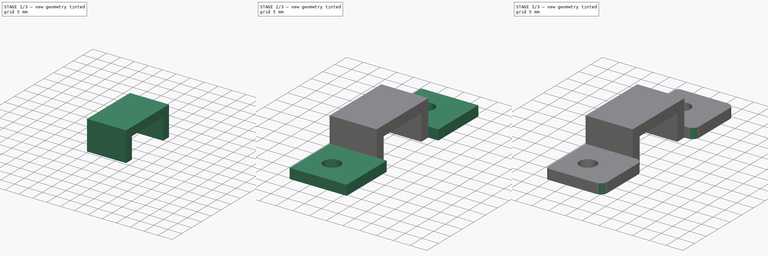
[diagram: build sequence overview — one tinted view per stage of 3, left to right]
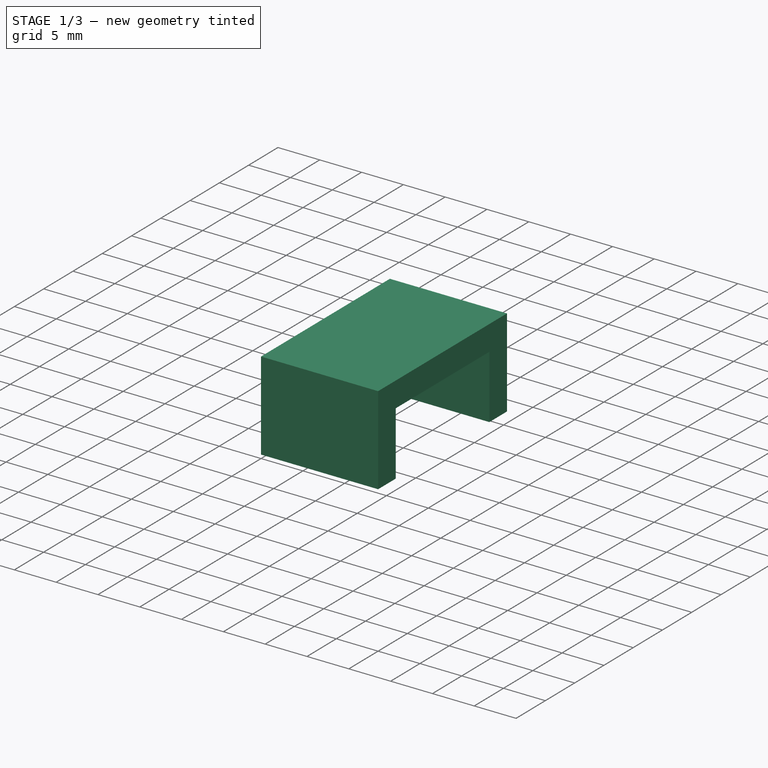
[diagram: stage 1 of 3 — iso view after this stage's code; geometry added in this stage tinted green]
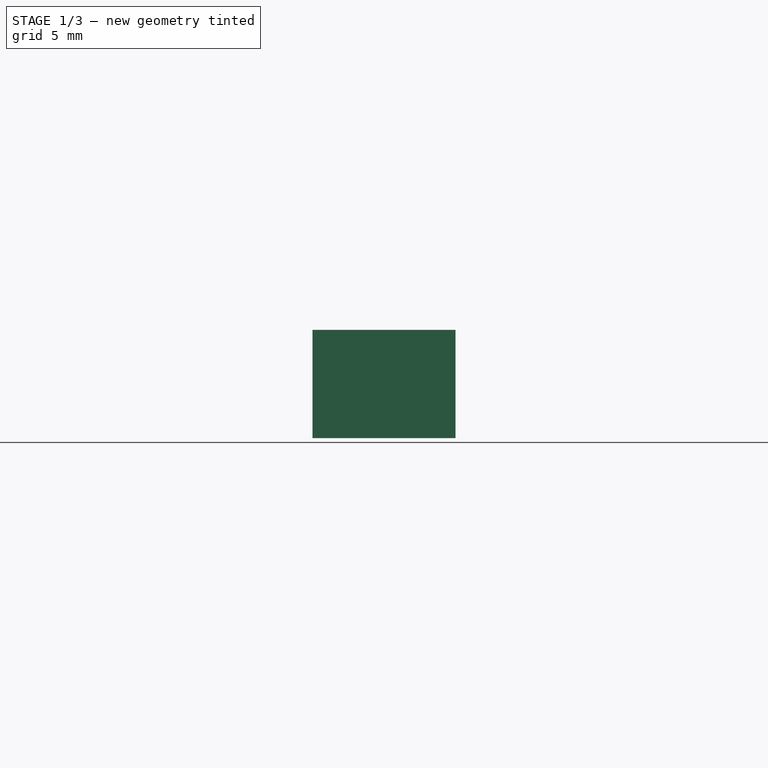
[diagram: stage 1 of 3 — front view after this stage's code; geometry added in this stage tinted green]
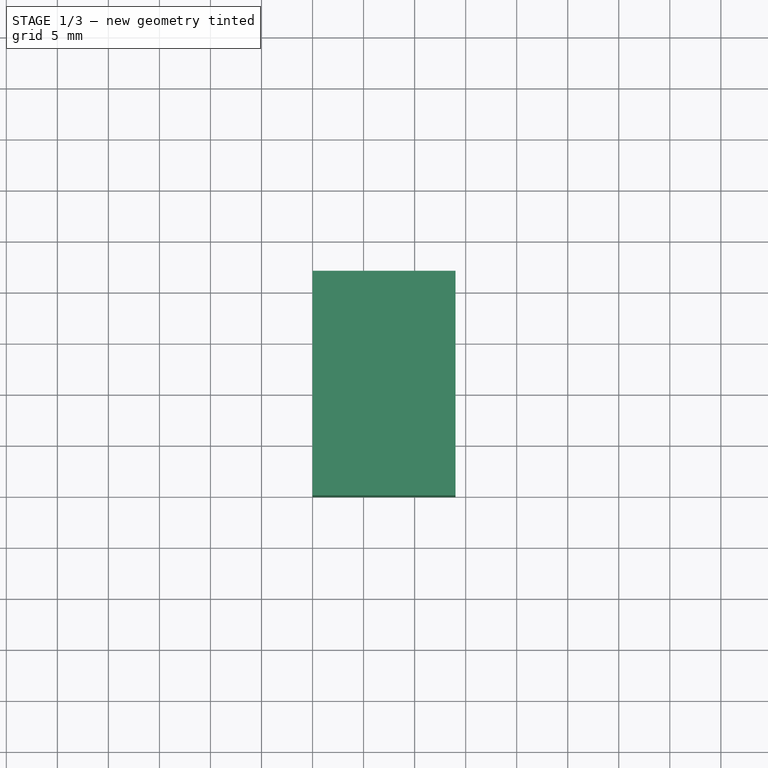
[diagram: stage 1 of 3 — top view after this stage's code; geometry added in this stage tinted green]
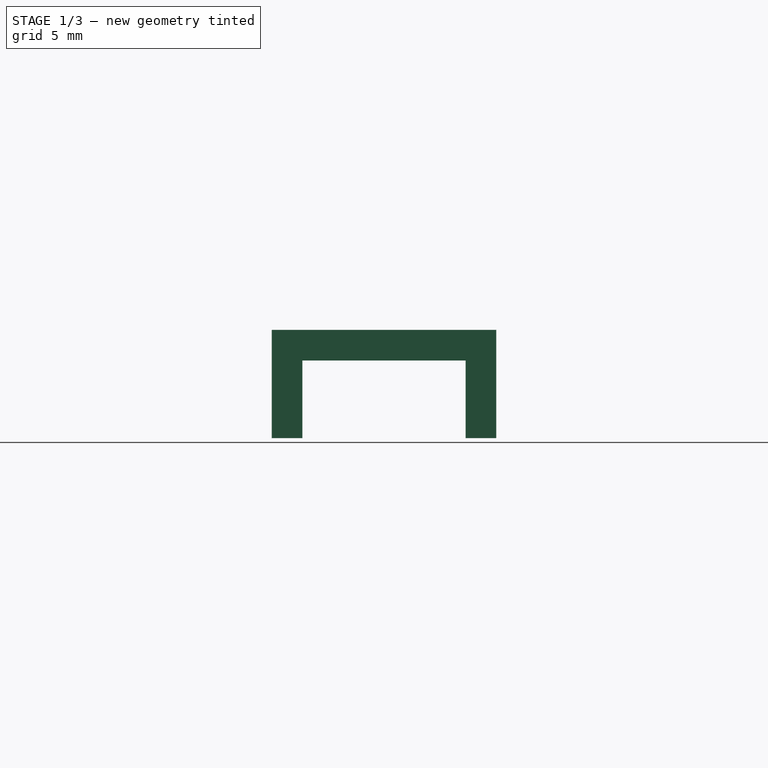
[diagram: stage 1 of 3 — right view after this stage's code; geometry added in this stage tinted green]
FCSTD DOCUMENT  (FreeCAD 0.19R24276 (Git))
Label: Connector_holder_part_2
License: All rights reserved
LicenseURL: http://en.wikipedia.org/wiki/All_rights_reserved
objects: Sketcher::SketchObject×3, PartDesign::Pad×3, PartDesign::Fillet×2, PartDesign::Body×1
note: 14 computed .brp shape members not serialized (recipe doc carries the construction recipe); baked Part::Feature solids carry a one-line shape summary decoded from their .brp

FEATURE [Sketcher::SketchObject] Sketch
  FullyConstrained = true
  MapMode = 5
  Support = -> [XY_Plane]
  sketch-geometry (18):
    g0: LineSegment StartX=0 StartY=0 StartZ=0 EndX=14 EndY=0 EndZ=0
    g1: LineSegment StartX=14 StartY=0 StartZ=0 EndX=14 EndY=22 EndZ=0
    g2: LineSegment StartX=14 StartY=22 StartZ=0 EndX=0 EndY=22 EndZ=0
    g3: LineSegment StartX=0 StartY=22 StartZ=0 EndX=0 EndY=0 EndZ=0
    g4: LineSegment StartX=0 StartY=-17 StartZ=0 EndX=14 EndY=-17 EndZ=0
    g5: LineSegment StartX=14 StartY=-17 StartZ=0 EndX=14 EndY=39 EndZ=0
    g6: LineSegment StartX=14 StartY=39 StartZ=0 EndX=0 EndY=39 EndZ=0
    g7: LineSegment StartX=0 StartY=39 StartZ=0 EndX=0 EndY=-17 EndZ=0
    g8: Circle CenterX=7 CenterY=31 CenterZ=0 NormalX=0 NormalY=0 NormalZ=1 AngleXU=0 Radius=2.5
    g9: Circle CenterX=7 CenterY=-9 CenterZ=0 NormalX=0 NormalY=0 NormalZ=1 AngleXU=0 Radius=2.5
    g10: LineSegment StartX=7 StartY=11 StartZ=0 EndX=14 EndY=11 EndZ=0
    g11: LineSegment StartX=7 StartY=-9 StartZ=0 EndX=7 EndY=0 EndZ=0
    g12: LineSegment StartX=14 StartY=39 StartZ=0 EndX=17 EndY=39 EndZ=0
    g13: LineSegment StartX=17 StartY=39 StartZ=0 EndX=17 EndY=-17 EndZ=0
    g14: LineSegment StartX=17 StartY=-17 StartZ=0 EndX=14 EndY=-17 EndZ=0
    g15: LineSegment StartX=14 StartY=-17 StartZ=0 EndX=14 EndY=39 EndZ=0
    g16: LineSegment StartX=0 StartY=39 StartZ=0 EndX=17 EndY=39 EndZ=0
    g17: LineSegment StartX=0 StartY=-17 StartZ=0 EndX=17 EndY=-17 EndZ=0
  constraints (48):
    c: Coincident(g0,g1)
    c: Coincident(g1,g2)
    c: Coincident(g2,g3)
    c: Coincident(g3,g0)
    c: Horizontal(g0)
    c: Horizontal(g2)
    c: Vertical(g1)
    c: Vertical(g3)
    c: Coincident(g0,g-1)
    c: Coincident(g4,g5)
    c: Coincident(g5,g6)
    c: Coincident(g6,g7)
    c: Coincident(g7,g4)
    c: Horizontal(g4)
    c: Horizontal(g6)
    c: Vertical(g5)
    c: Vertical(g7)
    c: PointOnObject(g4,g-2)
    c: DistanceY(g3,g3) = 22
    c: Vertical(g9,g8)
    c: Horizontal(g10)
    c: Symmetric(g1,g0,g10)
    c: Symmetric(g8,g9,g10)
    c: Coincident(g11,g9)
    c: Vertical(g11)
    c: Symmetric(g-1,g0,g11)
    c: DistanceY(g9,g8) = 40
    c: Vertical(g4,g0)
    c: DistanceY(g8,g5) = 8
    c: DistanceY(g4,g5) = 56
    c: DistanceX(g4,g4) = 14
    c: Diameter(g9) = 5
    c: Equal(g9,g8)
    c: Coincident(g12,g13)
    c: Coincident(g13,g14)
    c: Coincident(g14,g15)
    c: Coincident(g15,g12)
    c: Horizontal(g12)
    c: Horizontal(g14)
    c: Vertical(g13)
    c: Vertical(g15)
    c: Coincident(g12,g5)
    c: Horizontal(g14,g4)
    c: DistanceX(g14,g14) = 3
    c: Coincident(g16,g7)
    c: Coincident(g16,g13)
    c: Coincident(g17,g7)
    c: Coincident(g13,g17)
FEATURE [PartDesign::Pad] Pad
  Direction = (1,1,1)
  Length = 3
  Length2 = 100
  Profile = -> Sketch
  Type = 0
FEATURE [Sketcher::SketchObject] Sketch001
  FullyConstrained = true
  MapMode = 5
  Support = -> [XY_Plane]
  sketch-geometry (26):
    g0: LineSegment StartX=0 StartY=0 StartZ=0 EndX=14 EndY=0 EndZ=0
    g1: LineSegment StartX=14 StartY=0 StartZ=0 EndX=14 EndY=22 EndZ=0
    g2: LineSegment StartX=14 StartY=22 StartZ=0 EndX=0 EndY=22 EndZ=0
    g3: LineSegment StartX=0 StartY=22 StartZ=0 EndX=0 EndY=0 EndZ=0
    g4: LineSegment StartX=0 StartY=-17 StartZ=0 EndX=14 EndY=-17 EndZ=0
    g5: LineSegment StartX=14 StartY=-17 StartZ=0 EndX=14 EndY=39 EndZ=0
    g6: LineSegment StartX=14 StartY=39 StartZ=0 EndX=0 EndY=39 EndZ=0
    g7: LineSegment StartX=0 StartY=39 StartZ=0 EndX=0 EndY=-17 EndZ=0
    g8: Circle CenterX=7 CenterY=31 CenterZ=0 NormalX=0 NormalY=0 NormalZ=1 AngleXU=0 Radius=2.5
    g9: Circle CenterX=7 CenterY=-9 CenterZ=0 NormalX=0 NormalY=0 NormalZ=1 AngleXU=0 Radius=2.5
    g10: LineSegment StartX=7 StartY=11 StartZ=0 EndX=14 EndY=11 EndZ=0
    g11: LineSegment StartX=7 StartY=-9 StartZ=0 EndX=7 EndY=0 EndZ=0
    g12: LineSegment StartX=14 StartY=39 StartZ=0 EndX=17 EndY=39 EndZ=0
    g13: LineSegment StartX=17 StartY=39 StartZ=0 EndX=17 EndY=-17 EndZ=0
    g14: LineSegment StartX=17 StartY=-17 StartZ=0 EndX=14 EndY=-17 EndZ=0
    g15: LineSegment StartX=14 StartY=-17 StartZ=0 EndX=14 EndY=39 EndZ=0
    g16: LineSegment StartX=0 StartY=39 StartZ=0 EndX=17 EndY=39 EndZ=0
    g17: LineSegment StartX=0 StartY=-17 StartZ=0 EndX=17 EndY=-17 EndZ=0
    g18: LineSegment StartX=0 StartY=22 StartZ=0 EndX=14 EndY=22 EndZ=0
    g19: LineSegment StartX=14 StartY=22 StartZ=0 EndX=14 EndY=19 EndZ=0
    g20: LineSegment StartX=14 StartY=19 StartZ=0 EndX=0 EndY=19 EndZ=0
    g21: LineSegment StartX=0 StartY=19 StartZ=0 EndX=0 EndY=22 EndZ=0
    g22: LineSegment StartX=0 StartY=0 StartZ=0 EndX=14 EndY=0 EndZ=0
    g23: LineSegment StartX=14 StartY=0 StartZ=0 EndX=14 EndY=3 EndZ=0
    g24: LineSegment StartX=14 StartY=3 StartZ=0 EndX=0 EndY=3 EndZ=0
    g25: LineSegment StartX=0 StartY=3 StartZ=0 EndX=0 EndY=0 EndZ=0
  constraints (70):
    c: Coincident(g0,g1)
    c: Coincident(g1,g2)
    c: Coincident(g2,g3)
    c: Coincident(g3,g0)
    c: Horizontal(g0)
    c: Horizontal(g2)
    c: Vertical(g1)
    c: Vertical(g3)
    c: Coincident(g0,g-1)
    c: Coincident(g4,g5)
    c: Coincident(g5,g6)
    c: Coincident(g6,g7)
    c: Coincident(g7,g4)
    c: Horizontal(g4)
    c: Horizontal(g6)
    c: Vertical(g5)
    c: Vertical(g7)
    c: PointOnObject(g4,g-2)
    c: DistanceY(g3,g3) = 22
    c: Vertical(g9,g8)
    c: Horizontal(g10)
    c: Symmetric(g1,g0,g10)
    c: Symmetric(g8,g9,g10)
    c: Coincident(g11,g9)
    c: Vertical(g11)
    c: Symmetric(g-1,g0,g11)
    c: DistanceY(g9,g8) = 40
    c: Vertical(g4,g0)
    c: DistanceY(g8,g5) = 8
    c: DistanceY(g4,g5) = 56
    c: DistanceX(g4,g4) = 14
    c: Diameter(g9) = 5
    c: Equal(g9,g8)
    c: Coincident(g12,g13)
    c: Coincident(g13,g14)
    c: Coincident(g14,g15)
    c: Coincident(g15,g12)
    c: Horizontal(g12)
    c: Horizontal(g14)
    c: Vertical(g13)
    c: Vertical(g15)
    c: Coincident(g12,g5)
    c: Horizontal(g14,g4)
    c: DistanceX(g14,g14) = 3
    c: Coincident(g16,g7)
    c: Coincident(g16,g13)
    c: Coincident(g17,g7)
    c: Coincident(g13,g17)
    c: Coincident(g18,g19)
    c: Coincident(g19,g20)
    c: Coincident(g20,g21)
    c: Coincident(g21,g18)
    c: Horizontal(g18)
    c: Horizontal(g20)
    c: Vertical(g19)
    c: Vertical(g21)
    c: Coincident(g18,g2)
    c: Vertical(g18,g1)
    c: Coincident(g22,g23)
    c: Coincident(g23,g24)
    c: Coincident(g24,g25)
    c: Coincident(g25,g22)
    c: Horizontal(g22)
    c: Horizontal(g24)
    c: Vertical(g23)
    c: Vertical(g25)
    c: Coincident(g22,g-1)
    c: Vertical(g23,g0)
    c: DistanceY(g23,g23) = 3
    c: DistanceY(g19,g19) = 3
FEATURE [PartDesign::Pad] Pad001
  BaseFeature = -> Pad
  Direction = (1,1,1)
  Length = 7.6
  Length2 = 100
  Profile = -> Sketch001
  Reversed = true
  Type = 0
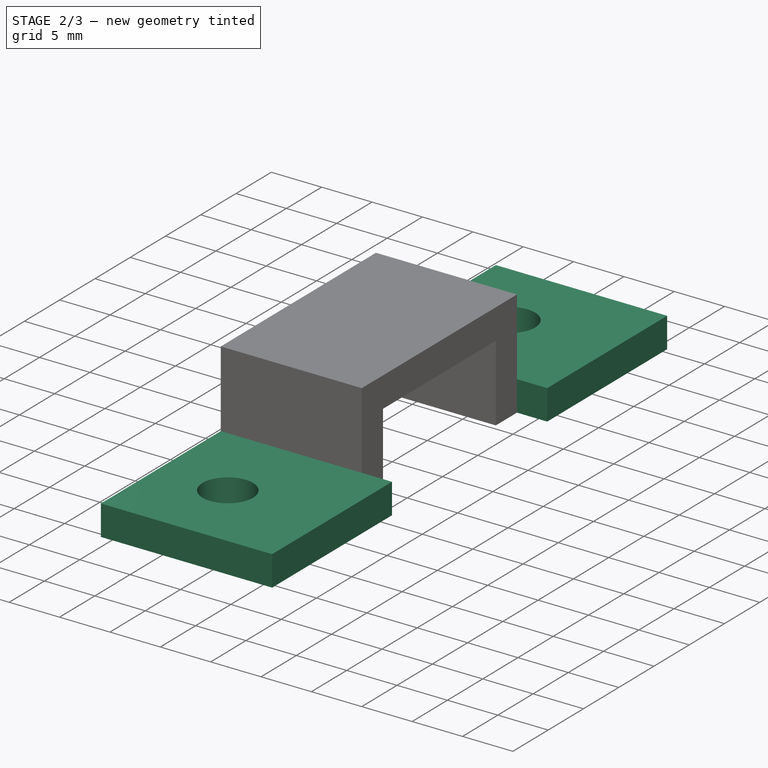
[diagram: stage 2 of 3 — iso view after this stage's code; geometry added in this stage tinted green]
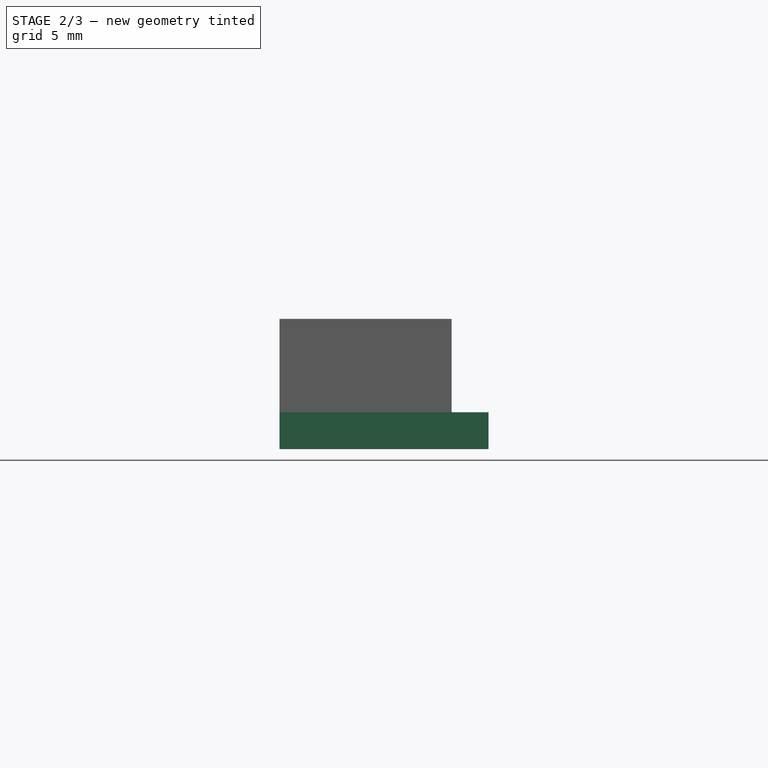
[diagram: stage 2 of 3 — front view after this stage's code; geometry added in this stage tinted green]
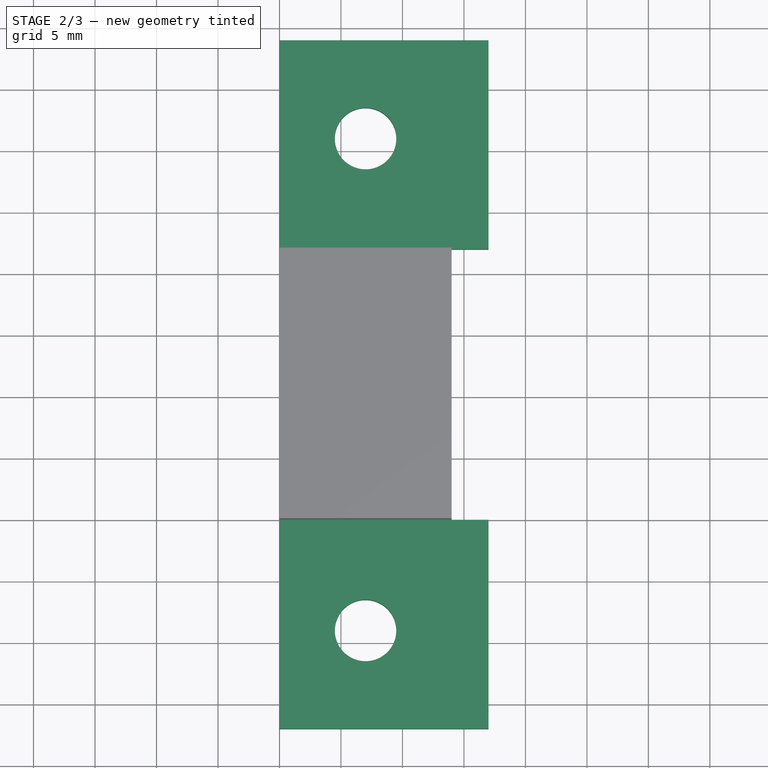
[diagram: stage 2 of 3 — top view after this stage's code; geometry added in this stage tinted green]
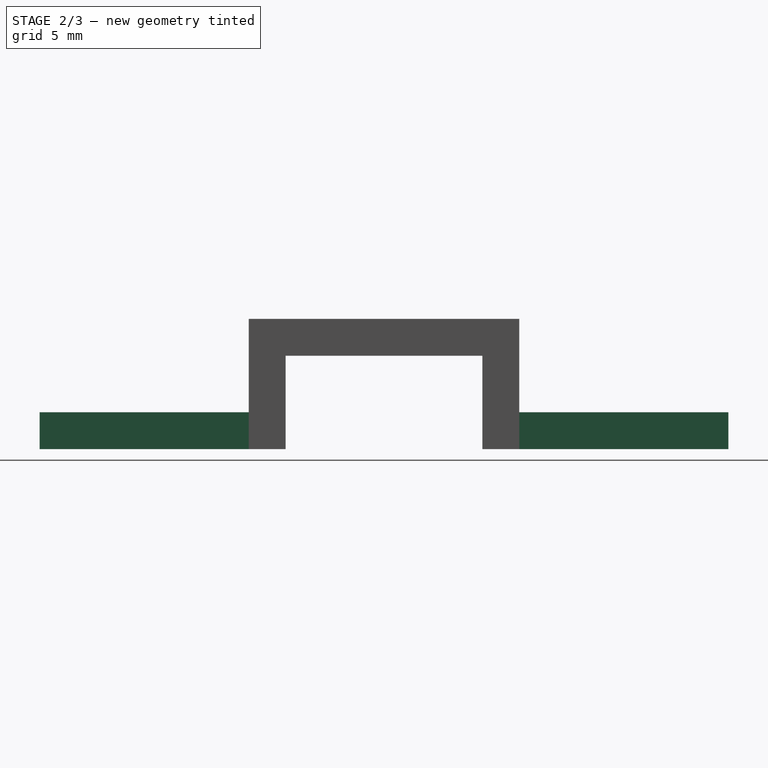
[diagram: stage 2 of 3 — right view after this stage's code; geometry added in this stage tinted green]
FEATURE [Sketcher::SketchObject] Sketch002
  AttachmentOffset = pos=(0,0,-4.6) rot=(0,0,1;0rad)
  FullyConstrained = true
  MapMode = 5
  Placement = pos=(0,0,-4.6) rot=(0,0,1;0rad)
  Support = -> [XY_Plane]
  sketch-geometry (34):
    g0: LineSegment StartX=0 StartY=0 StartZ=0 EndX=14 EndY=0 EndZ=0
    g1: LineSegment StartX=14 StartY=0 StartZ=0 EndX=14 EndY=22 EndZ=0
    g2: LineSegment StartX=14 StartY=22 StartZ=0 EndX=0 EndY=22 EndZ=0
    g3: LineSegment StartX=0 StartY=22 StartZ=0 EndX=0 EndY=0 EndZ=0
    g4: LineSegment StartX=0 StartY=-17 StartZ=0 EndX=14 EndY=-17 EndZ=0
    g5: LineSegment StartX=14 StartY=-17 StartZ=0 EndX=14 EndY=39 EndZ=0
    g6: LineSegment StartX=14 StartY=39 StartZ=0 EndX=0 EndY=39 EndZ=0
    g7: LineSegment StartX=0 StartY=39 StartZ=0 EndX=0 EndY=-17 EndZ=0
    g8: Circle CenterX=7 CenterY=31 CenterZ=0 NormalX=0 NormalY=0 NormalZ=1 AngleXU=0 Radius=2.5
    g9: Circle CenterX=7 CenterY=-9 CenterZ=0 NormalX=0 NormalY=0 NormalZ=1 AngleXU=0 Radius=2.5
    g10: LineSegment StartX=7 StartY=11 StartZ=0 EndX=14 EndY=11 EndZ=0
    g11: LineSegment StartX=7 StartY=-9 StartZ=0 EndX=7 EndY=0 EndZ=0
    g12: LineSegment StartX=14 StartY=39 StartZ=0 EndX=17 EndY=39 EndZ=0
    g13: LineSegment StartX=17 StartY=39 StartZ=0 EndX=17 EndY=-17 EndZ=0
    g14: LineSegment StartX=17 StartY=-17 StartZ=0 EndX=14 EndY=-17 EndZ=0
    g15: LineSegment StartX=14 StartY=-17 StartZ=0 EndX=14 EndY=39 EndZ=0
    g16: LineSegment StartX=0 StartY=39 StartZ=0 EndX=17 EndY=39 EndZ=0
    g17: LineSegment StartX=0 StartY=-17 StartZ=0 EndX=17 EndY=-17 EndZ=0
    g18: LineSegment StartX=0 StartY=22 StartZ=0 EndX=14 EndY=22 EndZ=0
    g19: LineSegment StartX=14 StartY=22 StartZ=0 EndX=14 EndY=19 EndZ=0
    g20: LineSegment StartX=14 StartY=19 StartZ=0 EndX=0 EndY=19 EndZ=0
    g21: LineSegment StartX=0 StartY=19 StartZ=0 EndX=0 EndY=22 EndZ=0
    g22: LineSegment StartX=0 StartY=0 StartZ=0 EndX=14 EndY=0 EndZ=0
    g23: LineSegment StartX=14 StartY=0 StartZ=0 EndX=14 EndY=3 EndZ=0
    g24: LineSegment StartX=14 StartY=3 StartZ=0 EndX=0 EndY=3 EndZ=0
    g25: LineSegment StartX=0 StartY=3 StartZ=0 EndX=0 EndY=0 EndZ=0
    g26: LineSegment StartX=0 StartY=22 StartZ=0 EndX=17 EndY=22 EndZ=0
    g27: LineSegment StartX=17 StartY=22 StartZ=0 EndX=17 EndY=39 EndZ=0
    g28: LineSegment StartX=17 StartY=39 StartZ=0 EndX=0 EndY=39 EndZ=0
    g29: LineSegment StartX=0 StartY=39 StartZ=0 EndX=0 EndY=22 EndZ=0
    g30: LineSegment StartX=0 StartY=0 StartZ=0 EndX=17 EndY=0 EndZ=0
    g31: LineSegment StartX=17 StartY=0 StartZ=0 EndX=17 EndY=-17 EndZ=0
    g32: LineSegment StartX=17 StartY=-17 StartZ=0 EndX=0 EndY=-17 EndZ=0
    g33: LineSegment StartX=0 StartY=-17 StartZ=0 EndX=0 EndY=0 EndZ=0
  constraints (90):
    c: Coincident(g0,g1)
    c: Coincident(g1,g2)
    c: Coincident(g2,g3)
    c: Coincident(g3,g0)
    c: Horizontal(g0)
    c: Horizontal(g2)
    c: Vertical(g1)
    c: Vertical(g3)
    c: Coincident(g0,g-1)
    c: Coincident(g4,g5)
    c: Coincident(g5,g6)
    c: Coincident(g6,g7)
    c: Coincident(g7,g4)
    c: Horizontal(g4)
    c: Horizontal(g6)
    c: Vertical(g5)
    c: Vertical(g7)
    c: PointOnObject(g4,g-2)
    c: DistanceY(g3,g3) = 22
    c: Vertical(g9,g8)
    c: Horizontal(g10)
    c: Symmetric(g1,g0,g10)
    c: Symmetric(g8,g9,g10)
    c: Coincident(g11,g9)
    c: Vertical(g11)
    c: Symmetric(g-1,g0,g11)
    c: DistanceY(g9,g8) = 40
    c: Vertical(g4,g0)
    c: DistanceY(g8,g5) = 8
    c: DistanceY(g4,g5) = 56
    c: DistanceX(g4,g4) = 14
    c: Diameter(g9) = 5
    c: Equal(g9,g8)
    c: Coincident(g12,g13)
    c: Coincident(g13,g14)
    c: Coincident(g14,g15)
    c: Coincident(g15,g12)
    c: Horizontal(g12)
    c: Horizontal(g14)
    c: Vertical(g13)
    c: Vertical(g15)
    c: Coincident(g12,g5)
    c: Horizontal(g14,g4)
    c: DistanceX(g14,g14) = 3
    c: Coincident(g16,g7)
    c: Coincident(g16,g13)
    c: Coincident(g17,g7)
    c: Coincident(g13,g17)
    c: Coincident(g18,g19)
    c: Coincident(g19,g20)
    c: Coincident(g20,g21)
    c: Coincident(g21,g18)
    c: Horizontal(g18)
    c: Horizontal(g20)
    c: Vertical(g19)
    c: Vertical(g21)
    c: Coincident(g18,g2)
    c: Vertical(g18,g1)
    c: Coincident(g22,g23)
    c: Coincident(g23,g24)
    c: Coincident(g24,g25)
    c: Coincident(g25,g22)
    c: Horizontal(g22)
    c: Horizontal(g24)
    c: Vertical(g23)
    c: Vertical(g25)
    c: Coincident(g22,g-1)
    c: Vertical(g23,g0)
    c: DistanceY(g23,g23) = 3
    c: DistanceY(g19,g19) = 3
    c: Coincident(g26,g27)
    c: Coincident(g27,g28)
    c: Coincident(g28,g29)
    c: Coincident(g29,g26)
    c: Horizontal(g26)
    c: Horizontal(g28)
    c: Vertical(g27)
    c: Vertical(g29)
    c: Coincident(g26,g2)
    c: Coincident(g27,g12)
    c: Coincident(g30,g31)
    c: Coincident(g31,g32)
    c: Coincident(g32,g33)
    c: Coincident(g33,g30)
    c: Horizontal(g30)
    c: Horizontal(g32)
    c: Vertical(g31)
    c: Vertical(g33)
    c: Coincident(g30,g-1)
    c: Coincident(g31,g13)
FEATURE [PartDesign::Pad] Pad002
  BaseFeature = -> Pad001
  Direction = (1,1,1)
  Length = 3
  Length2 = 100
  Profile = -> Sketch002
  Reversed = true
  Type = 0
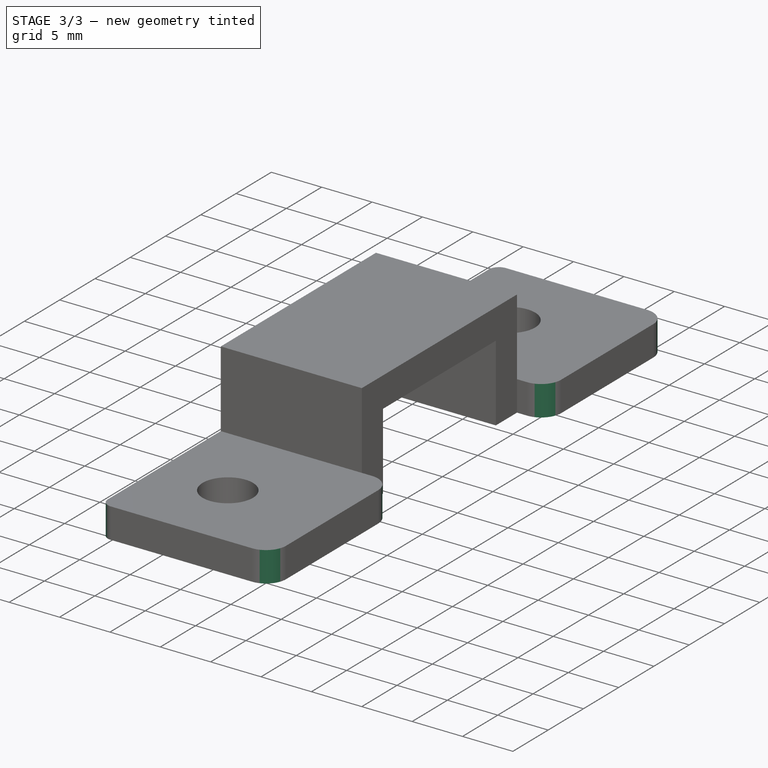
[diagram: stage 3 of 3 — iso view after this stage's code; geometry added in this stage tinted green]
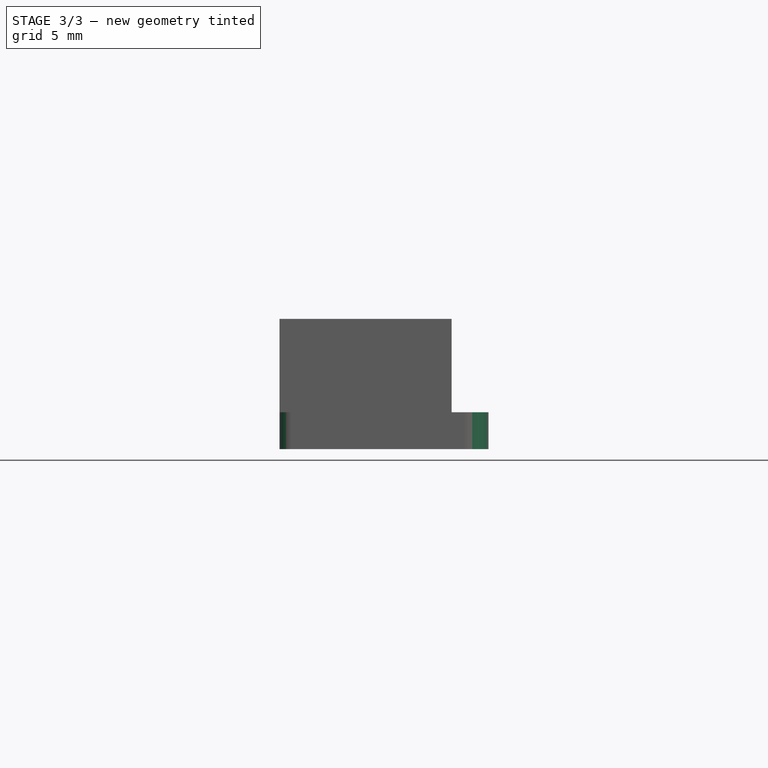
[diagram: stage 3 of 3 — front view after this stage's code; geometry added in this stage tinted green]
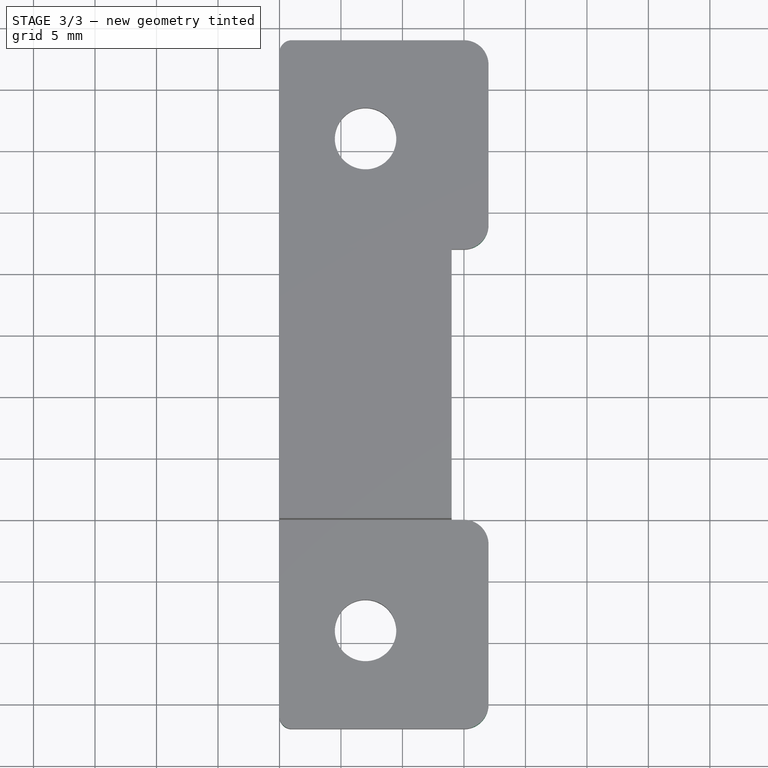
[diagram: stage 3 of 3 — top view after this stage's code; geometry added in this stage tinted green]
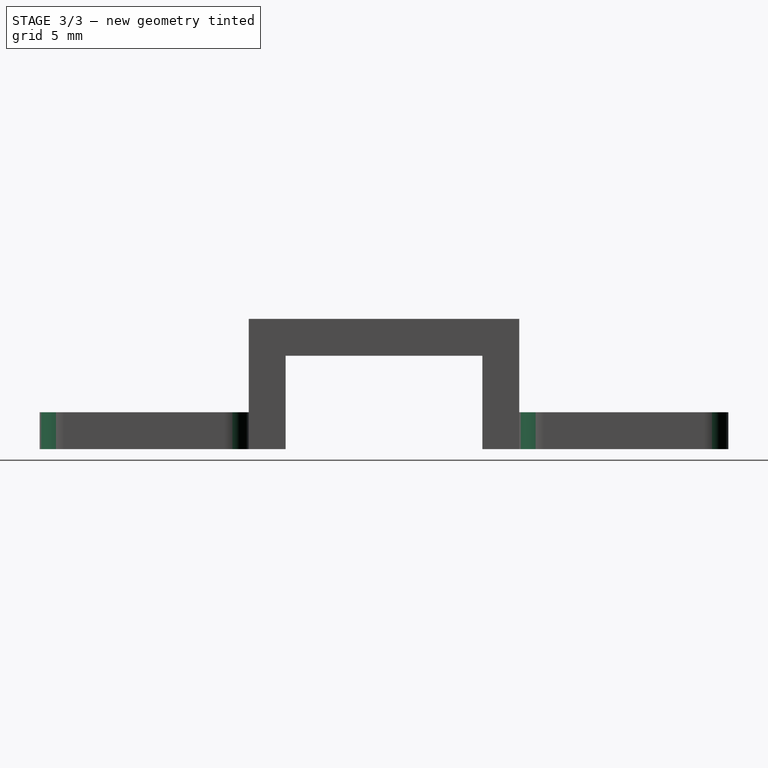
[diagram: stage 3 of 3 — right view after this stage's code; geometry added in this stage tinted green]
FEATURE [PartDesign::Fillet] Fillet
  Base = -> Pad002 [Edge56,Edge51,Edge54,Edge64]
  BaseFeature = -> Pad002
  Radius = 2
  SupportTransform = false
FEATURE [PartDesign::Fillet] Fillet001
  Base = -> Fillet [Edge19,Edge64]
  BaseFeature = -> Fillet
  Radius = 1
  SupportTransform = false
FEATURE [PartDesign::Body] Body
  Group = -> [Sketch,Pad,Sketch001,Pad001,Sketch002,Pad002,Fillet,Fillet001]
  Origin = -> Origin
  Tip = -> Fillet001
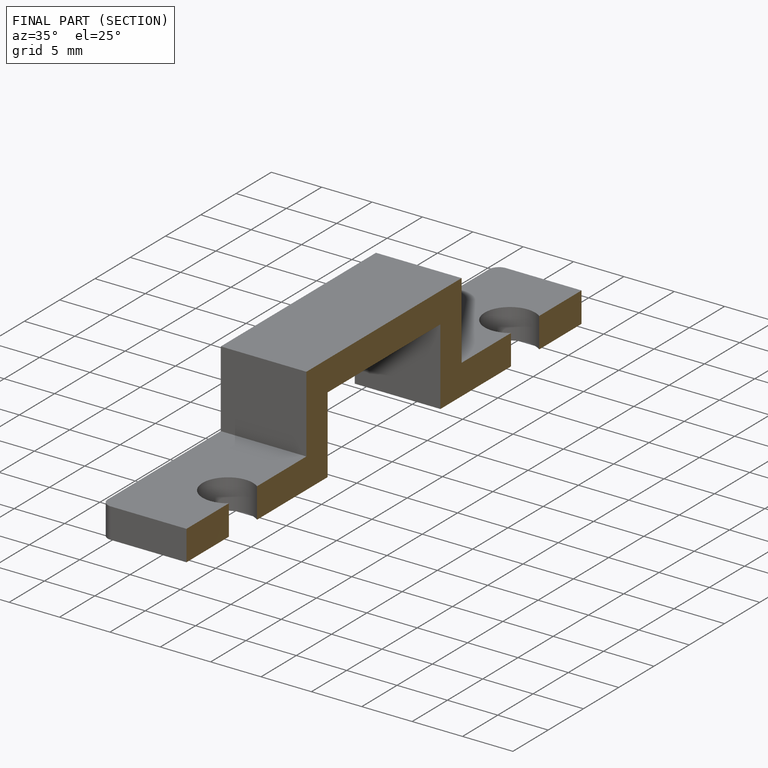
[diagram: finished part — half-section view (interior)]
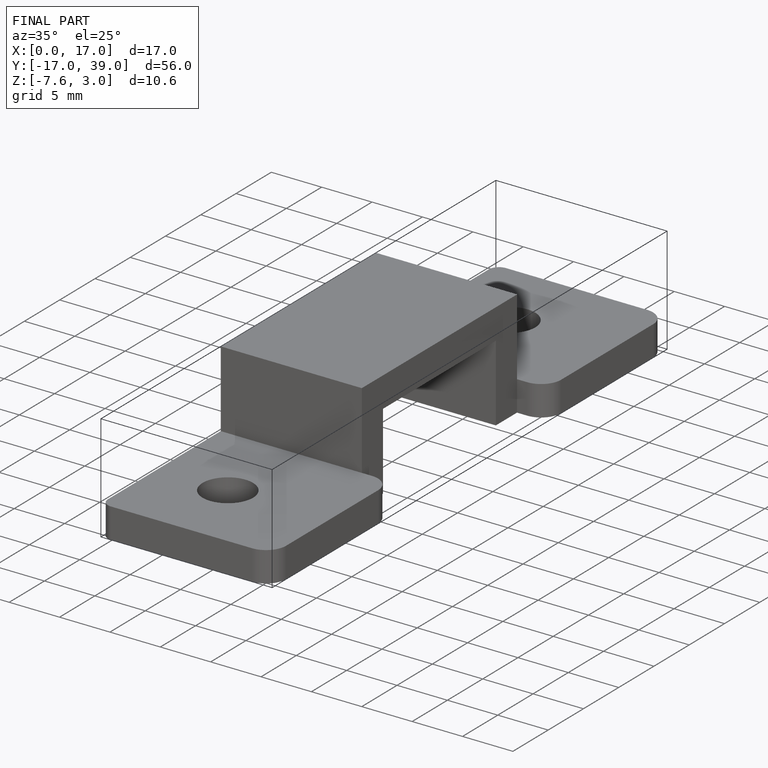
[diagram: finished part — iso view with bounding-box wireframe]
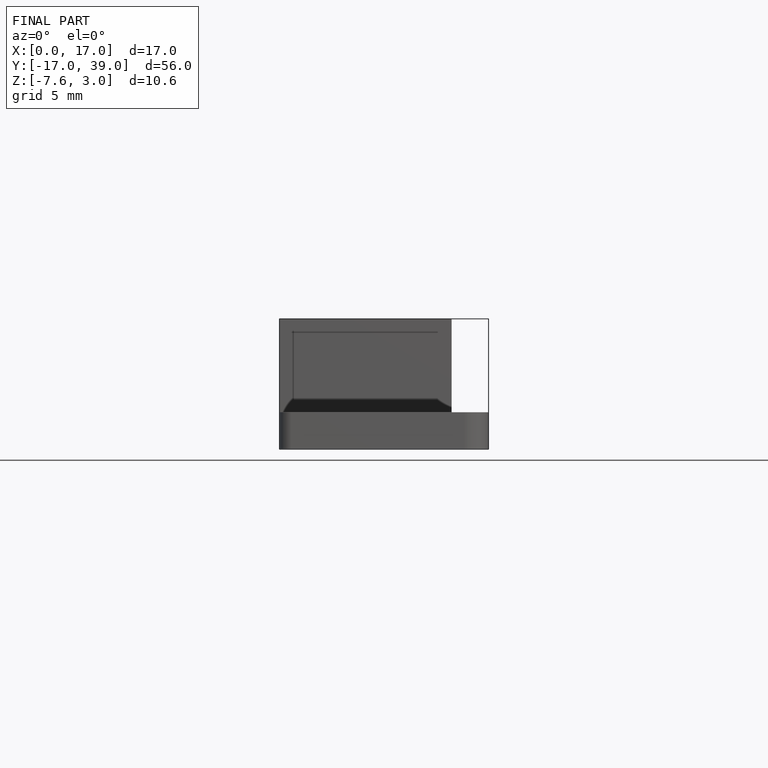
[diagram: finished part — front view with bounding-box wireframe]
